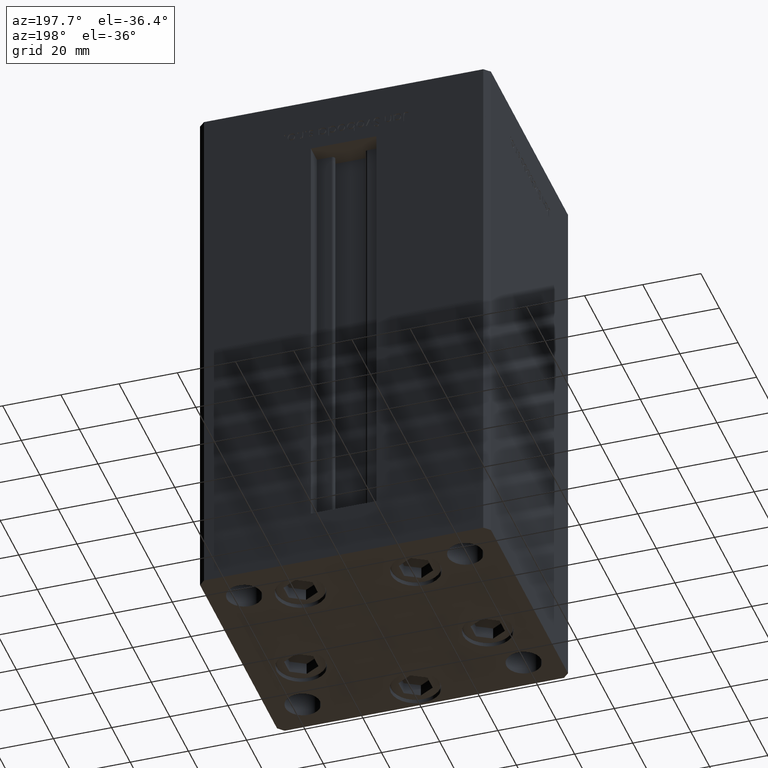
[diagram: clean part render]
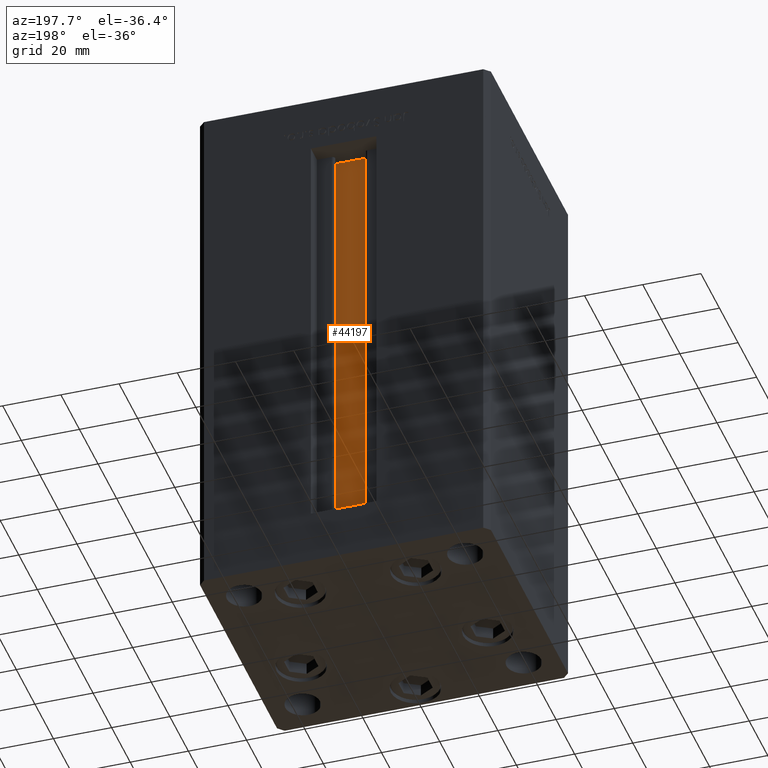
[diagram: same view with one face highlighted and labeled with its STEP entity id]
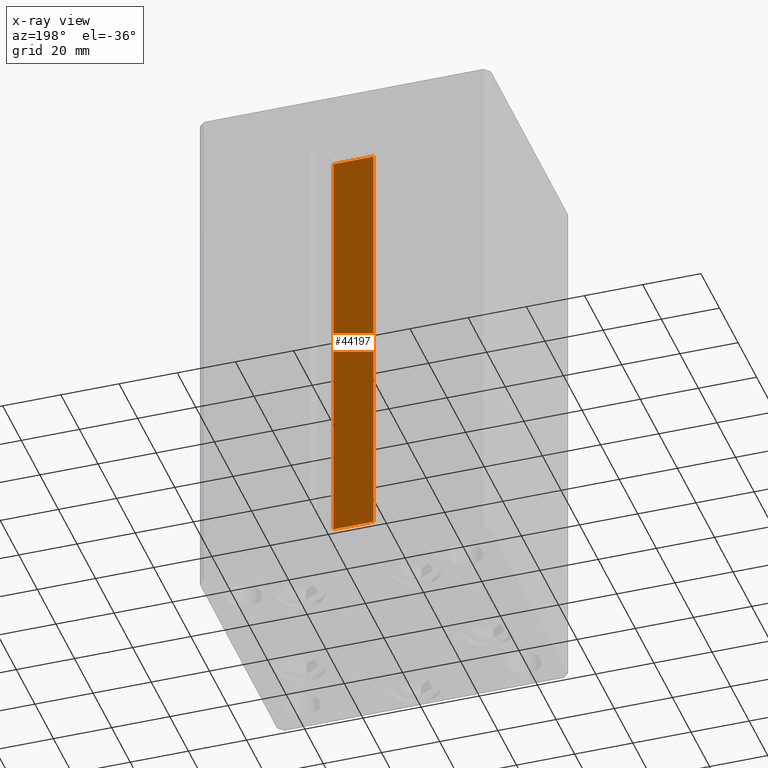
[diagram: x-ray of the same camera — body ghosted, the highlighted face saturated]
A machine part, auxiliary view. The second image highlights one B-rep face of the part: STEP entity #44197.
The next image is the same camera in x-ray: the body ghosted, the highlighted face saturated — about 0% of this face is hidden behind the body in this view.
In plain terms, the highlighted planar face has unit normal (0, -1, 0).
Its self-contained STEP definition (entity closure, byte-faithful):
#2290 = CARTESIAN_POINT ( 'NONE',  ( -6.876153656360465050, 32.99999999999986500, 148.5000000000000000 ) ) ;
#4991 = EDGE_CURVE ( 'NONE', #30428, #14609, #25637, .T. ) ;
#5601 = CARTESIAN_POINT ( 'NONE',  ( -6.876153656360465050, 32.99999999999986500, 0.000000000000000000 ) ) ;
#6841 = CARTESIAN_POINT ( 'NONE',  ( 0.000000000000000000, 32.99999999999986500, 148.5000000000000000 ) ) ;
#6963 = ORIENTED_EDGE ( 'NONE', *, *, #21008, .F. ) ;
#7956 = LINE ( 'NONE', #27990, #35484 ) ;
#10279 = LINE ( 'NONE', #6841, #27418 ) ;
#12554 = VECTOR ( 'NONE', #29066, 1000.000000000000000 ) ;
#13349 = VECTOR ( 'NONE', #25942, 1000.000000000000000 ) ;
#14609 = VERTEX_POINT ( 'NONE', #2290 ) ;
#18520 = ORIENTED_EDGE ( 'NONE', *, *, #4991, .T. ) ;
#18822 = VERTEX_POINT ( 'NONE', #24717 ) ;
#19139 = EDGE_LOOP ( 'NONE', ( #36023, #43407, #18520, #6963 ) ) ;
#21008 = EDGE_CURVE ( 'NONE', #43218, #14609, #10279, .T. ) ;
#22252 = LINE ( 'NONE', #42809, #13349 ) ;
#22925 = DIRECTION ( 'NONE',  ( -1.000000000000000000, 0.000000000000000000, 0.000000000000000000 ) ) ;
#24717 = CARTESIAN_POINT ( 'NONE',  ( 6.876153656360465050, 32.99999999999986500, 0.000000000000000000 ) ) ;
#25637 = LINE ( 'NONE', #5601, #12554 ) ;
#25942 = DIRECTION ( 'NONE',  ( 1.000000000000000000, -0.000000000000000000, -0.000000000000000000 ) ) ;
#27281 = CARTESIAN_POINT ( 'NONE',  ( 6.876153656360465050, 32.99999999999986500, 0.000000000000000000 ) ) ;
#27418 = VECTOR ( 'NONE', #22925, 1000.000000000000000 ) ;
#27990 = CARTESIAN_POINT ( 'NONE',  ( 6.876153656360465050, 32.99999999999986500, 0.000000000000000000 ) ) ;
#29064 = EDGE_CURVE ( 'NONE', #30428, #18822, #22252, .T. ) ;
#29066 = DIRECTION ( 'NONE',  ( -0.000000000000000000, -0.000000000000000000, 1.000000000000000000 ) ) ;
#30428 = VERTEX_POINT ( 'NONE', #39783 ) ;
#35213 = FACE_OUTER_BOUND ( 'NONE', #19139, .T. ) ;
#35484 = VECTOR ( 'NONE', #48310, 1000.000000000000000 ) ;
#36023 = ORIENTED_EDGE ( 'NONE', *, *, #42302, .F. ) ;
#39783 = CARTESIAN_POINT ( 'NONE',  ( -6.876153656360465050, 32.99999999999986500, 0.000000000000000000 ) ) ;
#40469 = DIRECTION ( 'NONE',  ( 0.000000000000000000, -1.000000000000000000, -0.000000000000000000 ) ) ;
#42302 = EDGE_CURVE ( 'NONE', #18822, #43218, #7956, .T. ) ;
#42809 = CARTESIAN_POINT ( 'NONE',  ( 6.876153656360465050, 32.99999999999986500, 0.000000000000000000 ) ) ;
#43119 = AXIS2_PLACEMENT_3D ( 'NONE', #27281, #40469, #52092 ) ;
#43218 = VERTEX_POINT ( 'NONE', #46573 ) ;
#43407 = ORIENTED_EDGE ( 'NONE', *, *, #29064, .F. ) ;
#44197 = ADVANCED_FACE ( 'NONE', ( #35213 ), #51304, .F. ) ;
#46573 = CARTESIAN_POINT ( 'NONE',  ( 6.876153656360465050, 32.99999999999986500, 148.5000000000000000 ) ) ;
#48310 = DIRECTION ( 'NONE',  ( -0.000000000000000000, -0.000000000000000000, 1.000000000000000000 ) ) ;
#51304 = PLANE ( 'NONE',  #43119 ) ;
#52092 = DIRECTION ( 'NONE',  ( 0.000000000000000000, 0.000000000000000000, -1.000000000000000000 ) ) ;